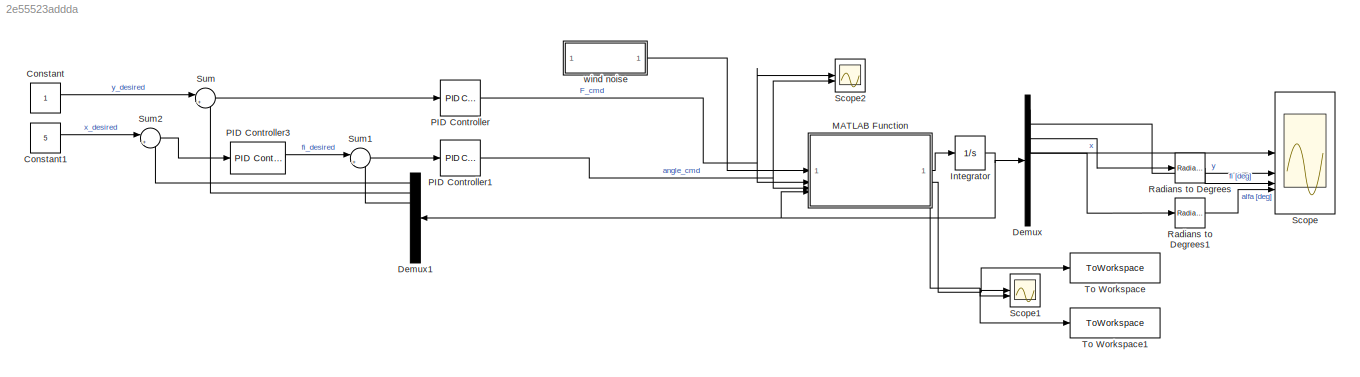
MODEL slx_2e55523addda
KIND model
CONFIG AbsTol = auto
CONFIG EnableMultiTasking = off
CONFIG FixedStep = 1e-3
CONFIG MaxStep = auto
CONFIG MinStep = auto
CONFIG RelTol = 1e-3
CONFIG SampleTimeConstraint = Unconstrained
CONFIG SolverName = ode4
CONFIG StartTime = 0.0
CONFIG StopTime = 15
BLOCK [Constant] Constant
BLOCK [Constant] Constant1
  Value = 5
BLOCK [Demux] Demux
  Outputs = 8
BLOCK [Demux] Demux1
  Outputs = 8
BLOCK [Integrator] Integrator
  IgnoreLimit = on
  InitialCondition = [0;0;0;0;0;0;0;0]
  LowerSaturationLimit = [-inf; -inf; -inf; -pi; -inf; -inf; -inf; -inf]
  UpperSaturationLimit = [inf; inf; inf; pi; inf; inf; inf; inf]
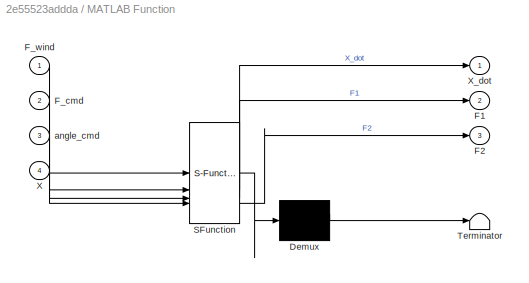
BLOCK [SubSystem] MATLAB Function
  ErrorFcn = Stateflow.Translate.translate
  LibrarySourceBlock = simulink/User-Defined\nFunctions/MATLAB Function
  PermitHierarchicalResolution = ExplicitOnly
  SFBlockType = MATLAB Function
  TreatAsAtomicUnit = on
BLOCK [Demux] MATLAB Function/ Demux 
  Outputs = 1
BLOCK [S-Function] MATLAB Function/ SFunction 
  EnableBusSupport = on
  FunctionName = sf_sfun
  Parameters = Ikv,Ip,L,M,d,g,k,kp,m
  PortCounts = [4 4]
  SFcnIsStateOwnerBlock = off
  SFunctionDeploymentMode = off
  Tag = Stateflow S-Function 2
BLOCK [Terminator] MATLAB Function/ Terminator 
BLOCK [Outport] MATLAB Function/F1
  Port = 2
BLOCK [Outport] MATLAB Function/F2
  Port = 3
BLOCK [Inport] MATLAB Function/F_cmd
  Port = 2
BLOCK [Inport] MATLAB Function/F_wind
BLOCK [Inport] MATLAB Function/X
  Port = 4
BLOCK [Outport] MATLAB Function/X_dot
BLOCK [Inport] MATLAB Function/angle_cmd
  Port = 3
BLOCK [Reference] PID Controller  REF=slpidlib/PID Controller
  LibrarySourceBlock = simulink/Continuous/PID Controller
  SourceBlock = slpidlib/PID Controller
  SourceType = PID 1dof
BLOCK [Reference] PID Controller1  REF=slpidlib/PID Controller
  LibrarySourceBlock = simulink/Continuous/PID Controller
  SourceBlock = slpidlib/PID Controller
  SourceType = PID 1dof
BLOCK [Reference] PID Controller3  REF=slpidlib/PID Controller
  LibrarySourceBlock = simulink/Continuous/PID Controller
  SourceBlock = slpidlib/PID Controller
  SourceType = PID 1dof
BLOCK [Reference] Radians to Degrees  REF=simulink_extras/Transformations/Radians
to Degrees
  SourceBlock = simulink_extras/Transformations/Radians\nto Degrees
  SourceType = RadiansToDegrees
BLOCK [Reference] Radians to Degrees1  REF=simulink_extras/Transformations/Radians
to Degrees
  SourceBlock = simulink_extras/Transformations/Radians\nto Degrees
  SourceType = RadiansToDegrees
BLOCK [Scope] Scope
  Floating = off
  NumInputPorts = 4
  ScopeSpecificationString = Simulink.scopes.TimeScopeBlockCfg('CurrentConfiguration', extmgr.ConfigurationSet(extmgr.Configuration('Core','General UI',true),extmgr.Configuration('Core','Source UI',true),extmgr.Configuration('Sources','WiredSimulink',true,'DataLogging',true,'DataLoggingSaveFormat','Structure'),extmgr.Configuration('Visuals','Time Domain',true,'SerializedDisplays',{struct('MinYLimReal','-0.81249','MaxYLimReal'...<+3421ch>
BLOCK [Scope] Scope1
  Floating = off
  NumInputPorts = 2
  ScopeSpecificationString = Simulink.scopes.TimeScopeBlockCfg('CurrentConfiguration', extmgr.ConfigurationSet(extmgr.Configuration('Core','General UI',true),extmgr.Configuration('Core','Source UI',true),extmgr.Configuration('Sources','WiredSimulink',true,'DataLoggingVariableName','ScopeData1'),extmgr.Configuration('Visuals','Time Domain',true,'SerializedDisplays',{struct('MinYLimReal','-55.20287','MaxYLimReal','474.15738','Y...<+2111ch>
BLOCK [Scope] Scope2
  Floating = off
  NumInputPorts = 2
  ScopeSpecificationString = Simulink.scopes.TimeScopeBlockCfg('CurrentConfiguration', extmgr.ConfigurationSet(extmgr.Configuration('Core','General UI',true),extmgr.Configuration('Core','Source UI',true),extmgr.Configuration('Sources','WiredSimulink',true,'DataLoggingVariableName','ScopeData2'),extmgr.Configuration('Visuals','Time Domain',true,'SerializedDisplays',{struct('MinYLimReal','-55.19683','MaxYLimReal','474.16393','Y...<+2086ch>
BLOCK [Sum] Sum
  Inputs = |+-
BLOCK [Sum] Sum1
  Inputs = |+-
BLOCK [Sum] Sum2
  Inputs = |+-
BLOCK [ToWorkspace] To Workspace
  FixptAsFi = on
  MaxDataPoints = inf
  SampleTime = -1
  VariableName = F1_t
BLOCK [ToWorkspace] To Workspace1
  FixptAsFi = on
  MaxDataPoints = inf
  SampleTime = -1
  VariableName = F2_t
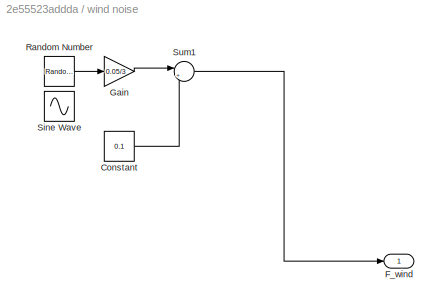
BLOCK [SubSystem] wind noise
BLOCK [Constant] wind noise/Constant
  Value = 0.1
BLOCK [Outport] wind noise/F_wind
BLOCK [Gain] wind noise/Gain
  Gain = 0.05/3
BLOCK [RandomNumber] wind noise/Random Number
  SampleTime = 0.1
BLOCK [Sin] wind noise/Sine Wave
  Amplitude = 0.1
  Frequency = 0.5
  SampleTime = 0
BLOCK [Sum] wind noise/Sum1
  Inputs = |++
LINE Constant1:1 -> Sum2:1
LINE Constant:1 -> Sum:1
LINE Demux1:1 -> Sum2:2
LINE Demux1:2 -> Sum:2
LINE Demux1:3 -> Sum1:2
LINE Demux:1 -> Scope:1
LINE Demux:2 -> Scope:2
LINE Demux:3 -> Radians to Degrees:1
LINE Demux:4 -> Radians to Degrees1:1
NET Integrator:1 -> Demux1:1, Demux:1, MATLAB Function:4
LINE MATLAB Function:1 -> Integrator:1
NET MATLAB Function:2 -> Scope1:1, To Workspace:1
NET MATLAB Function:3 -> Scope1:2, To Workspace1:1
NET PID Controller1:1 -> MATLAB Function:3, Scope2:2
LINE PID Controller3:1 -> Sum1:1
NET PID Controller:1 -> MATLAB Function:2, Scope2:1
LINE Radians to Degrees1:1 -> Scope:4
LINE Radians to Degrees:1 -> Scope:3
LINE Sum1:1 -> PID Controller1:1
LINE Sum2:1 -> PID Controller3:1
LINE Sum:1 -> PID Controller:1
LINE wind noise/Constant:1 -> wind noise/Sum1:2
LINE wind noise/Gain:1 -> wind noise/Sum1:1
LINE wind noise/Random Number:1 -> wind noise/Gain:1
LINE wind noise/Sum1:1 -> wind noise/F_wind:1
LINE wind noise:1 -> MATLAB Function:1
note: NET lines group one-source signal fan-out (src -> all destinations, sorted); 1:1 wires keep LINE
CHART MATLAB Function states=1 transitions=1
  STATE_LABEL 'eML_blk_kernel()'
  STATE_LABEL 'SCRIPT:\nfunction [X_dot, F1, F2]= fcn(F_wind, F_cmd, angle_cmd, X, g, L, d, M, m, Ikv, Ip, k, kp)\n% [x1, x2, x3, x4, x5, x6, x7, x8] = [x, y, fi, alfa, x_dot, y_dot, fi_dot, alfa_dot]\nx1 = X(1);\nx2 = X(2);\nx3 = X(3);\nx4 = X(4);\nx5 = X(5);\nx6 = X(6);\nx7 = X(7);\nx8 = X(8);\n\nF1 = F_cmd + angle_cmd; % Celková tažná síla na 1. motoru\nF2 = F_cmd - angle_cmd; % Celková tažná síla na 2. motoru\n% F1 a F2 l...<+921ch>'
CHART  states=0 transitions=0
